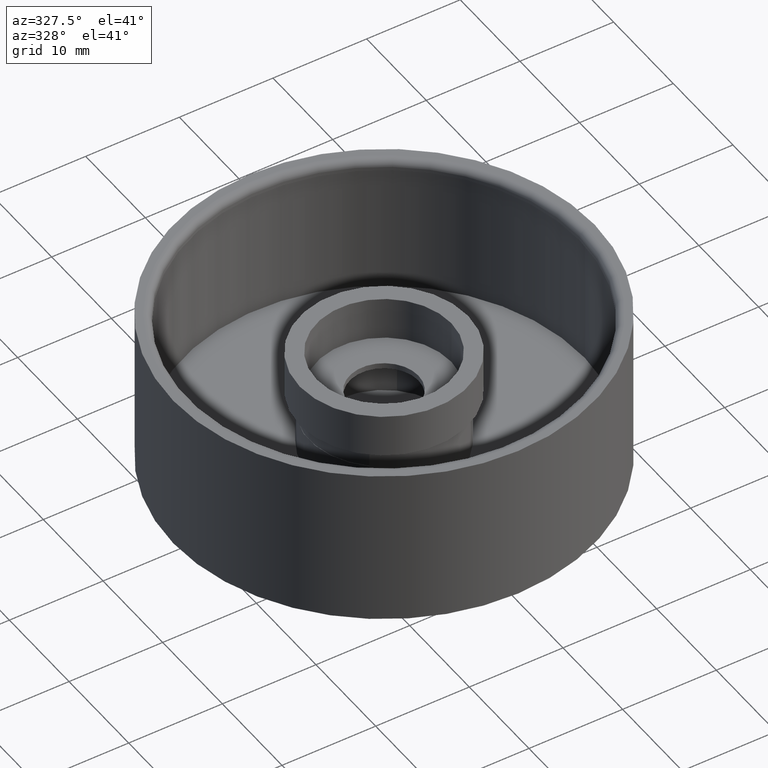
[diagram: clean part render]
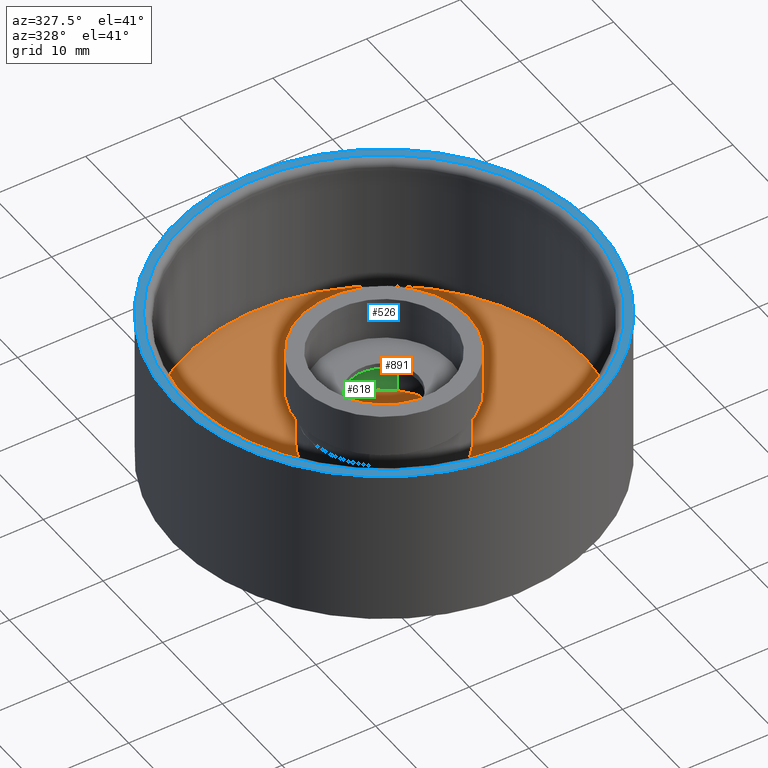
[diagram: same view with three faces highlighted in distinct colors, each labeled with its STEP entity id]
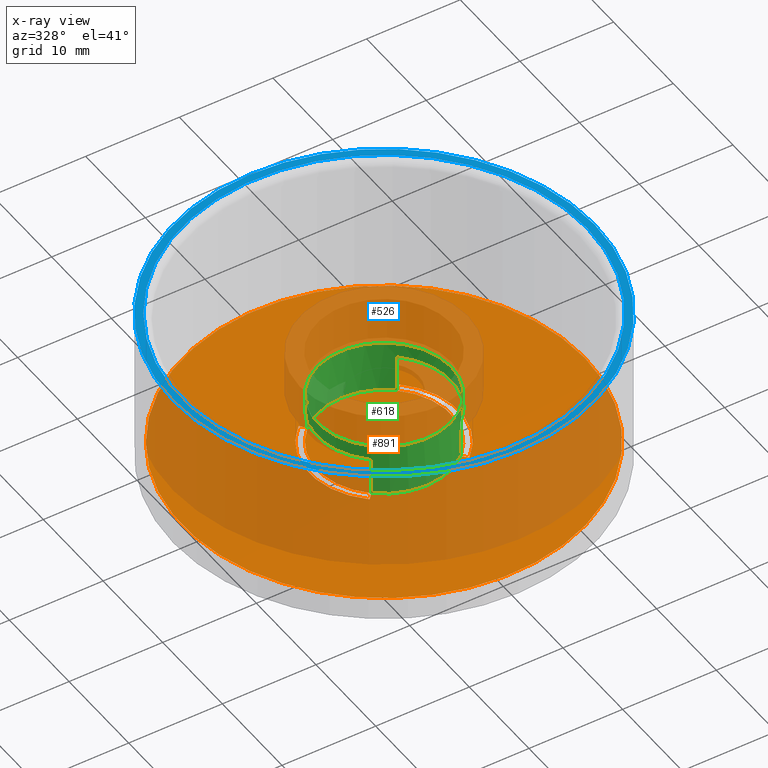
[diagram: x-ray of the same camera — body ghosted, the three highlighted faces saturated]
A machine part, auxiliary view with three faces highlighted in distinct colors.
The next image is the same camera in x-ray (body ghosted, the three faces saturated) — at least one of them is partly hidden behind the body in this view.
Their STEP definitions:

[orange] entity #891 — the highlighted planar face has unit normal (0, 0, 1).
#6 = AXIS2_PLACEMENT_3D ( 'NONE', #279, #294, #869 ) ;
#17 = FACE_BOUND ( 'NONE', #829, .T. ) ;
#37 = EDGE_CURVE ( 'NONE', #660, #326, #40, .T. ) ;
#38 = VERTEX_POINT ( 'NONE', #140 ) ;
#40 = CIRCLE ( 'NONE', #427, 0.2812499999999999445 ) ;
#65 = LINE ( 'NONE', #432, #835 ) ;
#66 = DIRECTION ( 'NONE',  ( 0.6666666666666668517, -0.7453559924999297870, 0.000000000000000000 ) ) ;
#68 = EDGE_CURVE ( 'NONE', #210, #361, #723, .T. ) ;
#104 = CIRCLE ( 'NONE', #633, 0.3149606299212598381 ) ;
#117 = ORIENTED_EDGE ( 'NONE', *, *, #37, .F. ) ;
#131 = CARTESIAN_POINT ( 'NONE',  ( 0.000000000000000000, 0.000000000000000000, 0.06250000000000001388 ) ) ;
#140 = CARTESIAN_POINT ( 'NONE',  ( 0.2099737532808400031, 0.2347577929133637387, 0.06250000000000001388 ) ) ;
#141 = EDGE_CURVE ( 'NONE', #684, #927, #501, .T. ) ;
#144 = CARTESIAN_POINT ( 'NONE',  ( 0.000000000000000000, 0.000000000000000000, 0.06250000000000001388 ) ) ;
#148 = AXIS2_PLACEMENT_3D ( 'NONE', #144, #426, #152 ) ;
#152 = DIRECTION ( 'NONE',  ( 1.000000000000000000, 0.000000000000000000, 0.000000000000000000 ) ) ;
#153 = ORIENTED_EDGE ( 'NONE', *, *, #155, .F. ) ;
#155 = EDGE_CURVE ( 'NONE', #644, #684, #517, .T. ) ;
#157 = DIRECTION ( 'NONE',  ( 1.000000000000000000, 0.000000000000000000, 0.000000000000000000 ) ) ;
#159 = CARTESIAN_POINT ( 'NONE',  ( 0.2099737532808400031, -0.2347577929133637387, 0.06250000000000001388 ) ) ;
#177 = EDGE_CURVE ( 'NONE', #927, #38, #104, .T. ) ;
#180 = VECTOR ( 'NONE', #840, 39.37007874015748143 ) ;
#201 = EDGE_LOOP ( 'NONE', ( #237, #677, #389, #117 ) ) ;
#210 = VERTEX_POINT ( 'NONE', #319 ) ;
#233 = EDGE_CURVE ( 'NONE', #799, #799, #894, .T. ) ;
#235 = DIRECTION ( 'NONE',  ( 1.000000000000000000, 0.000000000000000000, -0.000000000000000000 ) ) ;
#237 = ORIENTED_EDGE ( 'NONE', *, *, #687, .F. ) ;
#251 = EDGE_LOOP ( 'NONE', ( #341 ) ) ;
#256 = LINE ( 'NONE', #559, #339 ) ;
#279 = CARTESIAN_POINT ( 'NONE',  ( 0.000000000000000000, 0.000000000000000000, 0.06250000000000001388 ) ) ;
#294 = DIRECTION ( 'NONE',  ( -0.000000000000000000, -0.000000000000000000, -1.000000000000000000 ) ) ;
#301 = ORIENTED_EDGE ( 'NONE', *, *, #177, .F. ) ;
#303 = DIRECTION ( 'NONE',  ( 1.000000000000000000, 0.000000000000000000, 0.000000000000000000 ) ) ;
#319 = CARTESIAN_POINT ( 'NONE',  ( -0.2099737532808400031, 0.2347577929133637387, 0.06250000000000001388 ) ) ;
#326 = VERTEX_POINT ( 'NONE', #851 ) ;
#334 = CARTESIAN_POINT ( 'NONE',  ( -0.1875000000000000555, -0.2096313728906052110, 0.06250000000000001388 ) ) ;
#339 = VECTOR ( 'NONE', #546, 39.37007874015748143 ) ;
#341 = ORIENTED_EDGE ( 'NONE', *, *, #233, .T. ) ;
#343 = CARTESIAN_POINT ( 'NONE',  ( 0.1875000000000000555, 0.2096313728906052110, 0.06250000000000001388 ) ) ;
#352 = AXIS2_PLACEMENT_3D ( 'NONE', #882, #391, #235 ) ;
#361 = VERTEX_POINT ( 'NONE', #698 ) ;
#379 = PLANE ( 'NONE',  #352 ) ;
#389 = ORIENTED_EDGE ( 'NONE', *, *, #414, .F. ) ;
#391 = DIRECTION ( 'NONE',  ( 0.000000000000000000, 0.000000000000000000, 1.000000000000000000 ) ) ;
#414 = EDGE_CURVE ( 'NONE', #326, #210, #695, .T. ) ;
#426 = DIRECTION ( 'NONE',  ( 0.000000000000000000, 0.000000000000000000, 1.000000000000000000 ) ) ;
#427 = AXIS2_PLACEMENT_3D ( 'NONE', #131, #516, #802 ) ;
#432 = CARTESIAN_POINT ( 'NONE',  ( 0.1875000000000000555, 0.2096313728906052110, 0.06250000000000001388 ) ) ;
#495 = EDGE_CURVE ( 'NONE', #38, #644, #65, .T. ) ;
#501 = LINE ( 'NONE', #567, #590 ) ;
#516 = DIRECTION ( 'NONE',  ( -0.000000000000000000, -0.000000000000000000, -1.000000000000000000 ) ) ;
#517 = CIRCLE ( 'NONE', #6, 0.2812499999999999445 ) ;
#541 = ORIENTED_EDGE ( 'NONE', *, *, #141, .F. ) ;
#546 = DIRECTION ( 'NONE',  ( 0.6666666666666668517, 0.7453559924999297870, -0.000000000000000000 ) ) ;
#556 = CARTESIAN_POINT ( 'NONE',  ( -0.1875000000000000555, 0.2096313728906052110, 0.06250000000000001388 ) ) ;
#559 = CARTESIAN_POINT ( 'NONE',  ( -0.1875000000000000555, -0.2096313728906052110, 0.06250000000000001388 ) ) ;
#567 = CARTESIAN_POINT ( 'NONE',  ( 0.1875000000000000555, -0.2096313728906052110, 0.06250000000000001388 ) ) ;
#586 = FACE_BOUND ( 'NONE', #201, .T. ) ;
#590 = VECTOR ( 'NONE', #66, 39.37007874015748143 ) ;
#594 = CARTESIAN_POINT ( 'NONE',  ( 0.8448170911389231152, 0.000000000000000000, 0.06250000000000001388 ) ) ;
#633 = AXIS2_PLACEMENT_3D ( 'NONE', #735, #738, #303 ) ;
#644 = VERTEX_POINT ( 'NONE', #343 ) ;
#660 = VERTEX_POINT ( 'NONE', #334 ) ;
#677 = ORIENTED_EDGE ( 'NONE', *, *, #68, .F. ) ;
#684 = VERTEX_POINT ( 'NONE', #900 ) ;
#687 = EDGE_CURVE ( 'NONE', #361, #660, #256, .T. ) ;
#695 = LINE ( 'NONE', #556, #180 ) ;
#698 = CARTESIAN_POINT ( 'NONE',  ( -0.2099737532808400031, -0.2347577929133637387, 0.06250000000000001388 ) ) ;
#707 = AXIS2_PLACEMENT_3D ( 'NONE', #753, #823, #157 ) ;
#723 = CIRCLE ( 'NONE', #148, 0.3149606299212598381 ) ;
#735 = CARTESIAN_POINT ( 'NONE',  ( 0.000000000000000000, 0.000000000000000000, 0.06250000000000001388 ) ) ;
#738 = DIRECTION ( 'NONE',  ( 0.000000000000000000, 0.000000000000000000, 1.000000000000000000 ) ) ;
#753 = CARTESIAN_POINT ( 'NONE',  ( 0.000000000000000000, 0.000000000000000000, 0.06250000000000001388 ) ) ;
#799 = VERTEX_POINT ( 'NONE', #594 ) ;
#802 = DIRECTION ( 'NONE',  ( 1.000000000000000000, 0.000000000000000000, 0.000000000000000000 ) ) ;
#810 = FACE_OUTER_BOUND ( 'NONE', #251, .T. ) ;
#813 = ORIENTED_EDGE ( 'NONE', *, *, #495, .F. ) ;
#823 = DIRECTION ( 'NONE',  ( 0.000000000000000000, 0.000000000000000000, 1.000000000000000000 ) ) ;
#829 = EDGE_LOOP ( 'NONE', ( #301, #541, #153, #813 ) ) ;
#835 = VECTOR ( 'NONE', #936, 39.37007874015748143 ) ;
#840 = DIRECTION ( 'NONE',  ( -0.6666666666666668517, 0.7453559924999297870, 0.000000000000000000 ) ) ;
#851 = CARTESIAN_POINT ( 'NONE',  ( -0.1875000000000000555, 0.2096313728906052110, 0.06250000000000001388 ) ) ;
#869 = DIRECTION ( 'NONE',  ( 1.000000000000000000, 0.000000000000000000, 0.000000000000000000 ) ) ;
#882 = CARTESIAN_POINT ( 'NONE',  ( 0.000000000000000000, 0.000000000000000000, 0.06250000000000001388 ) ) ;
#891 = ADVANCED_FACE ( 'NONE', ( #810, #17, #586 ), #379, .T. ) ;
#894 = CIRCLE ( 'NONE', #707, 0.8448170911389231152 ) ;
#900 = CARTESIAN_POINT ( 'NONE',  ( 0.1875000000000000555, -0.2096313728906052110, 0.06250000000000001388 ) ) ;
#927 = VERTEX_POINT ( 'NONE', #159 ) ;
#936 = DIRECTION ( 'NONE',  ( -0.6666666666666668517, -0.7453559924999297870, -0.000000000000000000 ) ) ;

[blue] entity #526 — the highlighted planar face has unit normal (0, 0, 1).
#72 = FACE_OUTER_BOUND ( 'NONE', #375, .T. ) ;
#86 = DIRECTION ( 'NONE',  ( 0.000000000000000000, 0.000000000000000000, 1.000000000000000000 ) ) ;
#97 = CARTESIAN_POINT ( 'NONE',  ( 0.000000000000000000, 0.000000000000000000, 0.6692913385826771977 ) ) ;
#116 = CIRCLE ( 'NONE', #397, 0.8533267716535429814 ) ;
#125 = CARTESIAN_POINT ( 'NONE',  ( 0.000000000000000000, 0.000000000000000000, 0.6692913385826771977 ) ) ;
#145 = EDGE_CURVE ( 'NONE', #941, #941, #116, .T. ) ;
#207 = PLANE ( 'NONE',  #246 ) ;
#219 = EDGE_CURVE ( 'NONE', #514, #514, #538, .T. ) ;
#224 = CARTESIAN_POINT ( 'NONE',  ( 0.000000000000000000, 0.000000000000000000, 0.6692913385826771977 ) ) ;
#246 = AXIS2_PLACEMENT_3D ( 'NONE', #125, #368, #782 ) ;
#295 = ORIENTED_EDGE ( 'NONE', *, *, #145, .T. ) ;
#296 = CARTESIAN_POINT ( 'NONE',  ( 0.8533267716535429814, 0.000000000000000000, 0.6692913385826771977 ) ) ;
#363 = DIRECTION ( 'NONE',  ( 1.000000000000000000, 0.000000000000000000, 0.000000000000000000 ) ) ;
#368 = DIRECTION ( 'NONE',  ( 0.000000000000000000, 0.000000000000000000, 1.000000000000000000 ) ) ;
#375 = EDGE_LOOP ( 'NONE', ( #378 ) ) ;
#378 = ORIENTED_EDGE ( 'NONE', *, *, #219, .T. ) ;
#397 = AXIS2_PLACEMENT_3D ( 'NONE', #224, #939, #363 ) ;
#514 = VERTEX_POINT ( 'NONE', #733 ) ;
#526 = ADVANCED_FACE ( 'NONE', ( #702, #72 ), #207, .T. ) ;
#538 = CIRCLE ( 'NONE', #666, 0.8858267716535430658 ) ;
#666 = AXIS2_PLACEMENT_3D ( 'NONE', #97, #86, #679 ) ;
#679 = DIRECTION ( 'NONE',  ( 1.000000000000000000, 0.000000000000000000, 0.000000000000000000 ) ) ;
#702 = FACE_BOUND ( 'NONE', #754, .T. ) ;
#733 = CARTESIAN_POINT ( 'NONE',  ( 0.8858267716535430658, 0.000000000000000000, 0.6692913385826771977 ) ) ;
#754 = EDGE_LOOP ( 'NONE', ( #295 ) ) ;
#782 = DIRECTION ( 'NONE',  ( 1.000000000000000000, 0.000000000000000000, -0.000000000000000000 ) ) ;
#939 = DIRECTION ( 'NONE',  ( -0.000000000000000000, -0.000000000000000000, -1.000000000000000000 ) ) ;
#941 = VERTEX_POINT ( 'NONE', #296 ) ;

[green] entity #618 — the highlighted cylindrical surface (bore or boss wall) has radius 7.1425 mm, axis along (-0, -0, -1).
#12 = CARTESIAN_POINT ( 'NONE',  ( 0.2812007874015747810, 0.000000000000000000, 0.2829724409448818867 ) ) ;
#19 = CARTESIAN_POINT ( 'NONE',  ( -0.1881600533826031096, -0.2089729100776500093, 0.2199803149606299191 ) ) ;
#32 = CARTESIAN_POINT ( 'NONE',  ( 0.000000000000000000, 0.000000000000000000, 0.2593503937007873850 ) ) ;
#43 = FACE_OUTER_BOUND ( 'NONE', #627, .T. ) ;
#78 = ORIENTED_EDGE ( 'NONE', *, *, #775, .F. ) ;
#91 = CARTESIAN_POINT ( 'NONE',  ( 0.1881600533826031096, 0.2089729100776501480, 0.06249999999999995143 ) ) ;
#109 = DIRECTION ( 'NONE',  ( -1.000000000000000000, 0.000000000000000000, 0.000000000000000000 ) ) ;
#113 = CARTESIAN_POINT ( 'NONE',  ( 0.1881600533826031096, -0.2089729100776501480, 0.06249999999999995143 ) ) ;
#154 = CARTESIAN_POINT ( 'NONE',  ( 0.1881600533826031096, -0.2089729100776501480, 0.2593503937007873850 ) ) ;
#176 = ORIENTED_EDGE ( 'NONE', *, *, #200, .T. ) ;
#191 = DIRECTION ( 'NONE',  ( -0.000000000000000000, -0.000000000000000000, -1.000000000000000000 ) ) ;
#197 = DIRECTION ( 'NONE',  ( 1.000000000000000000, 0.000000000000000000, 0.000000000000000000 ) ) ;
#200 = EDGE_CURVE ( 'NONE', #345, #545, #838, .T. ) ;
#218 = DIRECTION ( 'NONE',  ( -0.000000000000000000, -0.000000000000000000, -1.000000000000000000 ) ) ;
#223 = CARTESIAN_POINT ( 'NONE',  ( 0.1881600533826031096, 0.2089729100776501480, 0.2593503937007873850 ) ) ;
#242 = DIRECTION ( 'NONE',  ( -0.000000000000000000, -0.000000000000000000, -1.000000000000000000 ) ) ;
#247 = AXIS2_PLACEMENT_3D ( 'NONE', #32, #191, #911 ) ;
#261 = VECTOR ( 'NONE', #242, 39.37007874015748143 ) ;
#269 = ORIENTED_EDGE ( 'NONE', *, *, #482, .F. ) ;
#280 = ORIENTED_EDGE ( 'NONE', *, *, #645, .T. ) ;
#281 = DIRECTION ( 'NONE',  ( 0.000000000000000000, 0.000000000000000000, 1.000000000000000000 ) ) ;
#291 = VECTOR ( 'NONE', #218, 39.37007874015748143 ) ;
#293 = AXIS2_PLACEMENT_3D ( 'NONE', #906, #327, #619 ) ;
#298 = DIRECTION ( 'NONE',  ( -0.000000000000000000, -0.000000000000000000, -1.000000000000000000 ) ) ;
#320 = VERTEX_POINT ( 'NONE', #19 ) ;
#324 = CIRCLE ( 'NONE', #605, 0.2812007874015748921 ) ;
#327 = DIRECTION ( 'NONE',  ( -0.000000000000000000, -0.000000000000000000, -1.000000000000000000 ) ) ;
#337 = VECTOR ( 'NONE', #394, 39.37007874015748143 ) ;
#340 = DIRECTION ( 'NONE',  ( -0.000000000000000000, -0.000000000000000000, 1.000000000000000000 ) ) ;
#345 = VERTEX_POINT ( 'NONE', #912 ) ;
#390 = EDGE_CURVE ( 'NONE', #345, #320, #411, .T. ) ;
#394 = DIRECTION ( 'NONE',  ( -0.000000000000000000, -0.000000000000000000, -1.000000000000000000 ) ) ;
#411 = CIRCLE ( 'NONE', #921, 0.2812007874015747810 ) ;
#419 = ORIENTED_EDGE ( 'NONE', *, *, #390, .F. ) ;
#422 = VERTEX_POINT ( 'NONE', #473 ) ;
#425 = LINE ( 'NONE', #223, #291 ) ;
#440 = ORIENTED_EDGE ( 'NONE', *, *, #780, .T. ) ;
#458 = CIRCLE ( 'NONE', #539, 0.2812007874015747810 ) ;
#473 = CARTESIAN_POINT ( 'NONE',  ( 0.1881600533826030541, 0.2089729100776502313, 0.2199803149606299191 ) ) ;
#482 = EDGE_CURVE ( 'NONE', #320, #880, #634, .T. ) ;
#492 = ORIENTED_EDGE ( 'NONE', *, *, #805, .T. ) ;
#504 = AXIS2_PLACEMENT_3D ( 'NONE', #932, #859, #197 ) ;
#506 = CARTESIAN_POINT ( 'NONE',  ( -0.1881600533826031096, -0.2089729100776500093, 0.2593503937007873850 ) ) ;
#512 = EDGE_CURVE ( 'NONE', #422, #577, #425, .T. ) ;
#539 = AXIS2_PLACEMENT_3D ( 'NONE', #711, #281, #570 ) ;
#545 = VERTEX_POINT ( 'NONE', #712 ) ;
#548 = CARTESIAN_POINT ( 'NONE',  ( 0.1881600533826031096, -0.2089729100776501480, 0.2199803149606299191 ) ) ;
#562 = DIRECTION ( 'NONE',  ( -1.000000000000000000, 0.000000000000000000, 0.000000000000000000 ) ) ;
#570 = DIRECTION ( 'NONE',  ( 1.000000000000000000, 0.000000000000000000, 0.000000000000000000 ) ) ;
#577 = VERTEX_POINT ( 'NONE', #91 ) ;
#582 = EDGE_LOOP ( 'NONE', ( #419, #176, #280, #710, #78, #940, #492, #269 ) ) ;
#588 = CARTESIAN_POINT ( 'NONE',  ( -0.1881600533826029986, 0.2089729100776501480, 0.2593503937007873850 ) ) ;
#605 = AXIS2_PLACEMENT_3D ( 'NONE', #862, #632, #562 ) ;
#618 = ADVANCED_FACE ( 'NONE', ( #764, #43 ), #752, .F. ) ;
#619 = DIRECTION ( 'NONE',  ( 1.000000000000000000, 0.000000000000000000, 0.000000000000000000 ) ) ;
#627 = EDGE_LOOP ( 'NONE', ( #440 ) ) ;
#632 = DIRECTION ( 'NONE',  ( -0.000000000000000000, -0.000000000000000000, 1.000000000000000000 ) ) ;
#634 = LINE ( 'NONE', #506, #694 ) ;
#645 = EDGE_CURVE ( 'NONE', #545, #577, #682, .T. ) ;
#662 = LINE ( 'NONE', #154, #261 ) ;
#682 = CIRCLE ( 'NONE', #293, 0.2812007874015747810 ) ;
#688 = VERTEX_POINT ( 'NONE', #548 ) ;
#694 = VECTOR ( 'NONE', #298, 39.37007874015748143 ) ;
#699 = VERTEX_POINT ( 'NONE', #113 ) ;
#710 = ORIENTED_EDGE ( 'NONE', *, *, #512, .F. ) ;
#711 = CARTESIAN_POINT ( 'NONE',  ( 0.000000000000000000, 0.000000000000000000, 0.2829724409448818867 ) ) ;
#712 = CARTESIAN_POINT ( 'NONE',  ( -0.1881600533826029986, 0.2089729100776501480, 0.06249999999999995143 ) ) ;
#718 = VERTEX_POINT ( 'NONE', #12 ) ;
#752 = CYLINDRICAL_SURFACE ( 'NONE', #247, 0.2812007874015747810 ) ;
#764 = FACE_OUTER_BOUND ( 'NONE', #582, .T. ) ;
#775 = EDGE_CURVE ( 'NONE', #688, #422, #324, .T. ) ;
#780 = EDGE_CURVE ( 'NONE', #718, #718, #458, .T. ) ;
#805 = EDGE_CURVE ( 'NONE', #699, #880, #821, .T. ) ;
#821 = CIRCLE ( 'NONE', #504, 0.2812007874015747810 ) ;
#833 = CARTESIAN_POINT ( 'NONE',  ( 0.000000000000000000, 0.000000000000000000, 0.2199803149606299191 ) ) ;
#838 = LINE ( 'NONE', #588, #337 ) ;
#854 = CARTESIAN_POINT ( 'NONE',  ( -0.1881600533826031096, -0.2089729100776500093, 0.06249999999999995143 ) ) ;
#859 = DIRECTION ( 'NONE',  ( -0.000000000000000000, -0.000000000000000000, -1.000000000000000000 ) ) ;
#862 = CARTESIAN_POINT ( 'NONE',  ( 0.000000000000000000, 0.000000000000000000, 0.2199803149606299191 ) ) ;
#880 = VERTEX_POINT ( 'NONE', #854 ) ;
#903 = EDGE_CURVE ( 'NONE', #688, #699, #662, .T. ) ;
#906 = CARTESIAN_POINT ( 'NONE',  ( 0.000000000000000000, 0.000000000000000000, 0.06249999999999995143 ) ) ;
#911 = DIRECTION ( 'NONE',  ( -1.000000000000000000, 0.000000000000000000, 0.000000000000000000 ) ) ;
#912 = CARTESIAN_POINT ( 'NONE',  ( -0.1881600533826029986, 0.2089729100776501480, 0.2199803149606299191 ) ) ;
#921 = AXIS2_PLACEMENT_3D ( 'NONE', #833, #340, #109 ) ;
#932 = CARTESIAN_POINT ( 'NONE',  ( 0.000000000000000000, 0.000000000000000000, 0.06249999999999995143 ) ) ;
#940 = ORIENTED_EDGE ( 'NONE', *, *, #903, .T. ) ;